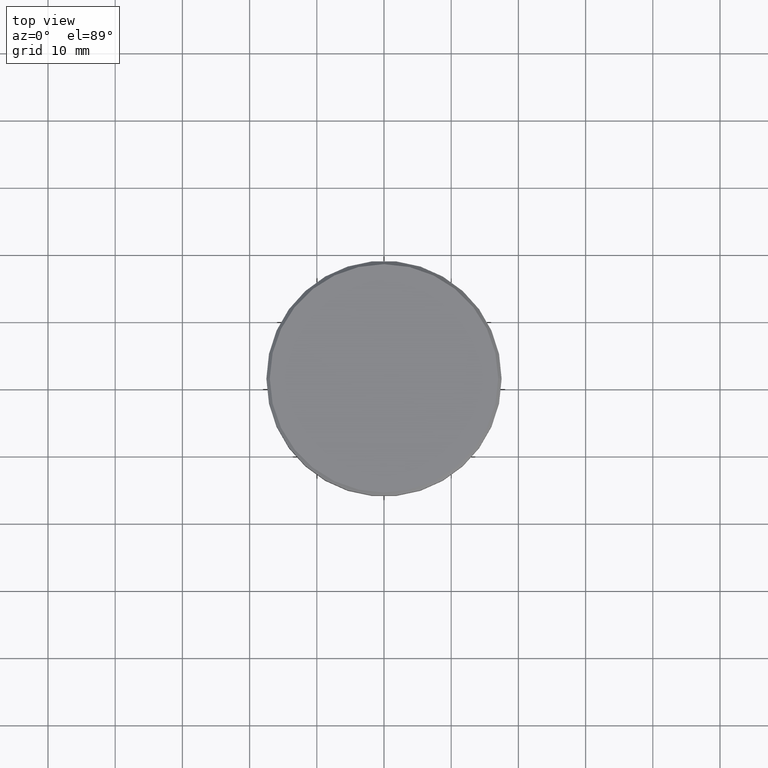
[diagram: clean part render]
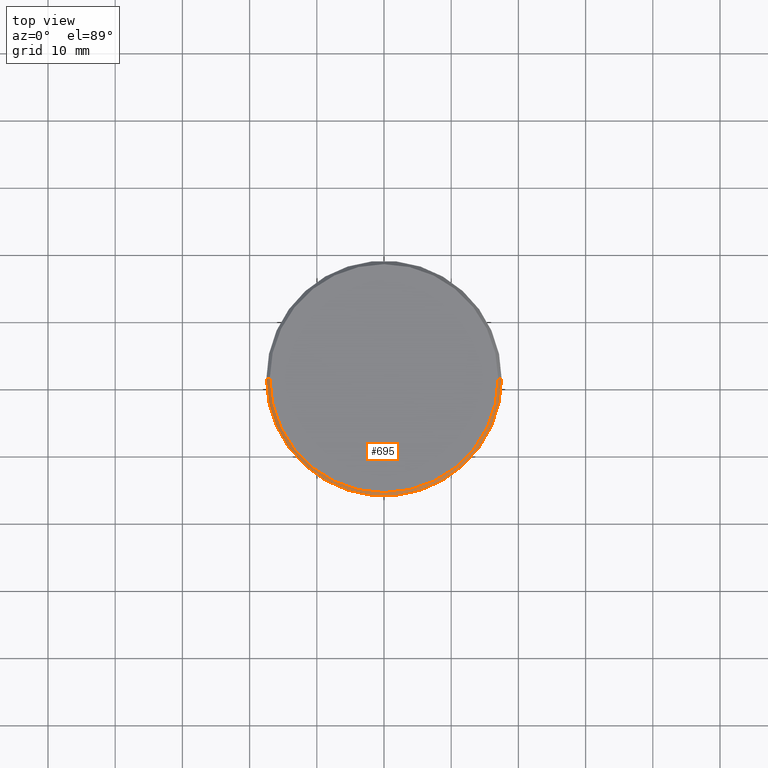
[diagram: same view with one face highlighted and labeled with its STEP entity id]
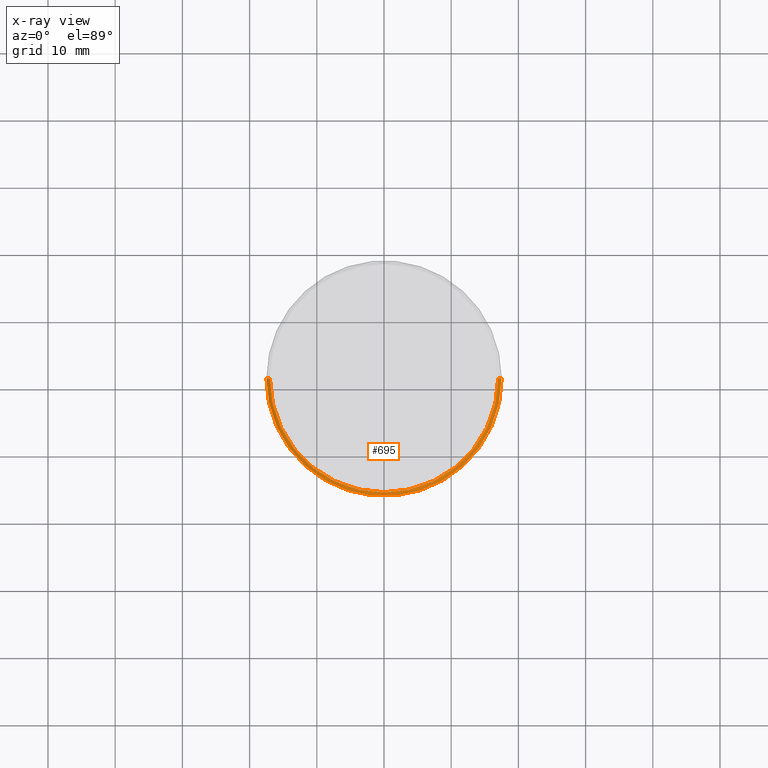
[diagram: x-ray of the same camera — body ghosted, the highlighted face saturated]
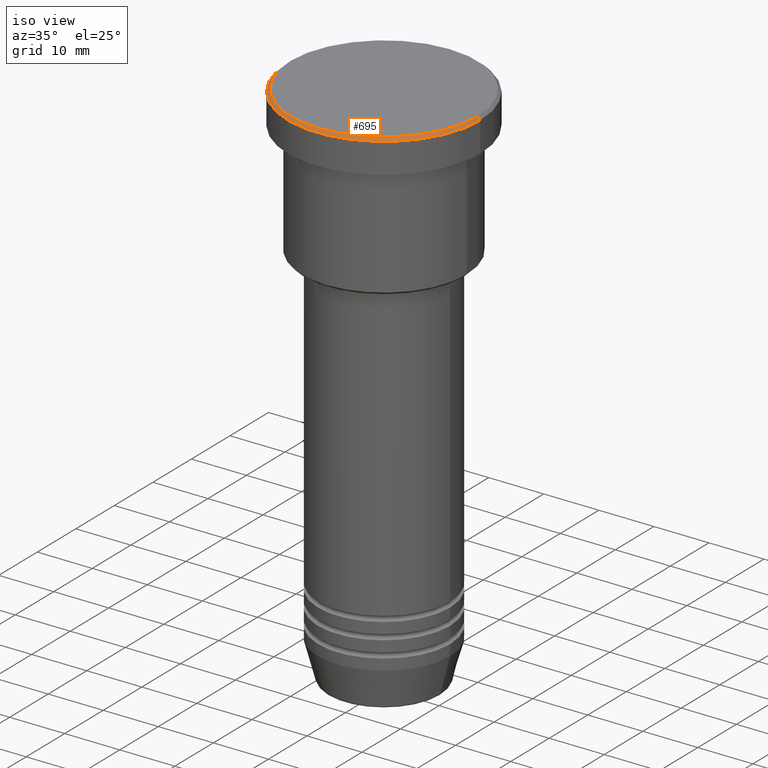
[diagram: same view with one face highlighted and labeled with its STEP entity id]
A machine part, top view. The second image highlights one B-rep face of the part: STEP entity #695.
The next image is the same camera in x-ray: the body ghosted, the highlighted face saturated — about 0% of this face is hidden behind the body in this view.
A second angle (iso view) of the same face is appended — the face is thin or edge-on in the first view.
In plain terms, the highlighted conical surface has half-angle 45 deg.
Its self-contained STEP definition (entity closure, byte-faithful):
#22 = CARTESIAN_POINT ( 'NONE',  ( 16.99999999999998579, 2.112515728529183278E-15, 0.000000000000000000 ) ) ;
#34 = CARTESIAN_POINT ( 'NONE',  ( 0.000000000000000000, 0.000000000000000000, 0.000000000000000000 ) ) ;
#37 = CARTESIAN_POINT ( 'NONE',  ( 16.99999999999998579, 2.081899558550499096E-15, 0.000000000000000000 ) ) ;
#56 = DIRECTION ( 'NONE',  ( -1.000000000000000000, 0.000000000000000000, 0.000000000000000000 ) ) ;
#101 = EDGE_CURVE ( 'NONE', #794, #692, #191, .T. ) ;
#130 = FACE_OUTER_BOUND ( 'NONE', #395, .T. ) ;
#183 = ORIENTED_EDGE ( 'NONE', *, *, #734, .F. ) ;
#191 = CIRCLE ( 'NONE', #384, 17.50000000000000000 ) ;
#214 = CARTESIAN_POINT ( 'NONE',  ( 0.000000000000000000, 0.000000000000000000, -0.5000000000000143219 ) ) ;
#224 = LINE ( 'NONE', #37, #1139 ) ;
#308 = DIRECTION ( 'NONE',  ( -0.000000000000000000, -0.000000000000000000, 1.000000000000000000 ) ) ;
#369 = DIRECTION ( 'NONE',  ( 0.000000000000000000, 0.000000000000000000, -1.000000000000000000 ) ) ;
#384 = AXIS2_PLACEMENT_3D ( 'NONE', #214, #369, #989 ) ;
#394 = DIRECTION ( 'NONE',  ( -0.7071067811865474617, 0.000000000000000000, -0.7071067811865474617 ) ) ;
#395 = EDGE_LOOP ( 'NONE', ( #183, #1146, #745, #841 ) ) ;
#416 = CARTESIAN_POINT ( 'NONE',  ( -17.50000000000000000, 2.143131898507868248E-15, -0.5000000000000143219 ) ) ;
#439 = VECTOR ( 'NONE', #394, 1000.000000000000114 ) ;
#487 = DIRECTION ( 'NONE',  ( 1.000000000000000000, 0.000000000000000000, 0.000000000000000000 ) ) ;
#535 = CIRCLE ( 'NONE', #606, 16.99999999999998579 ) ;
#538 = CONICAL_SURFACE ( 'NONE', #689, 16.99999999999998579, 0.7853981633974482790 ) ;
#580 = LINE ( 'NONE', #1108, #439 ) ;
#592 = CARTESIAN_POINT ( 'NONE',  ( 0.000000000000000000, 0.000000000000000000, 0.000000000000000000 ) ) ;
#606 = AXIS2_PLACEMENT_3D ( 'NONE', #592, #308, #487 ) ;
#689 = AXIS2_PLACEMENT_3D ( 'NONE', #34, #948, #56 ) ;
#692 = VERTEX_POINT ( 'NONE', #416 ) ;
#695 = ADVANCED_FACE ( 'NONE', ( #130 ), #538, .T. ) ;
#734 = EDGE_CURVE ( 'NONE', #1116, #794, #224, .T. ) ;
#740 = VERTEX_POINT ( 'NONE', #1044 ) ;
#745 = ORIENTED_EDGE ( 'NONE', *, *, #1076, .T. ) ;
#794 = VERTEX_POINT ( 'NONE', #1134 ) ;
#841 = ORIENTED_EDGE ( 'NONE', *, *, #101, .F. ) ;
#857 = DIRECTION ( 'NONE',  ( 0.7071067811865474617, 8.659560562354932858E-17, -0.7071067811865474617 ) ) ;
#948 = DIRECTION ( 'NONE',  ( 0.000000000000000000, 0.000000000000000000, -1.000000000000000000 ) ) ;
#989 = DIRECTION ( 'NONE',  ( 1.000000000000000000, 0.000000000000000000, 0.000000000000000000 ) ) ;
#1044 = CARTESIAN_POINT ( 'NONE',  ( -16.99999999999998579, 0.000000000000000000, 0.000000000000000000 ) ) ;
#1076 = EDGE_CURVE ( 'NONE', #740, #692, #580, .T. ) ;
#1108 = CARTESIAN_POINT ( 'NONE',  ( -16.99999999999998579, 0.000000000000000000, 0.000000000000000000 ) ) ;
#1116 = VERTEX_POINT ( 'NONE', #22 ) ;
#1134 = CARTESIAN_POINT ( 'NONE',  ( 17.50000000000000000, 0.000000000000000000, -0.5000000000000143219 ) ) ;
#1139 = VECTOR ( 'NONE', #857, 1000.000000000000114 ) ;
#1146 = ORIENTED_EDGE ( 'NONE', *, *, #1173, .F. ) ;
#1173 = EDGE_CURVE ( 'NONE', #740, #1116, #535, .T. ) ;